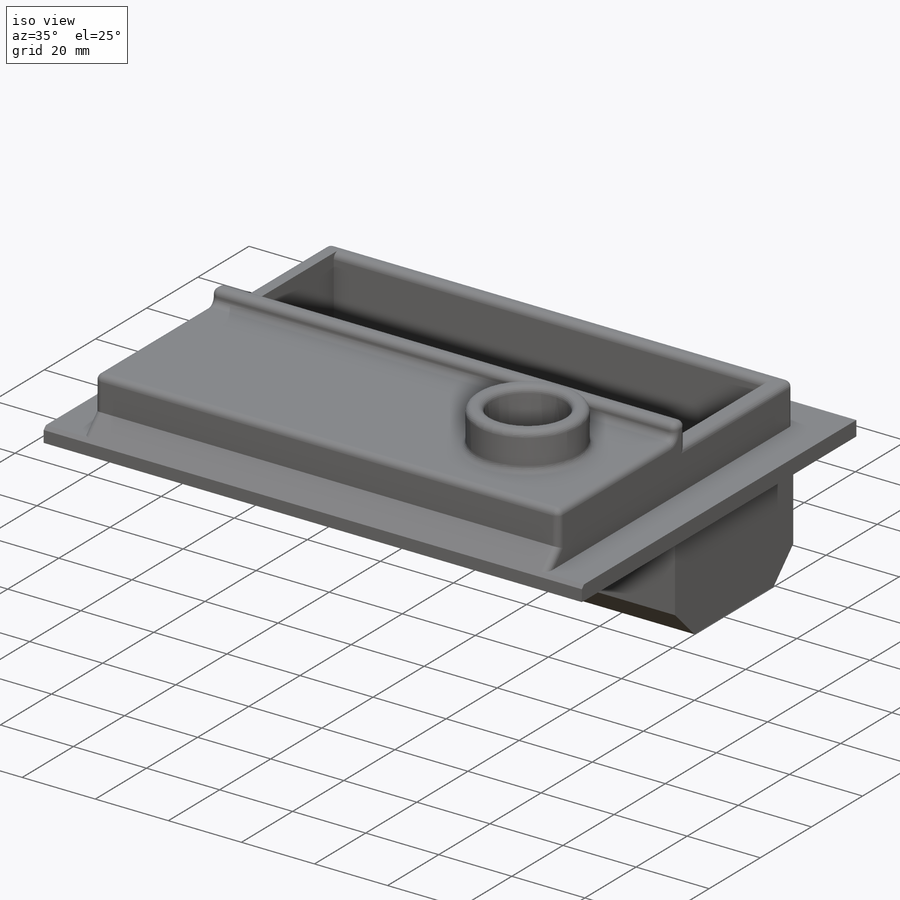
[diagram: iso view]
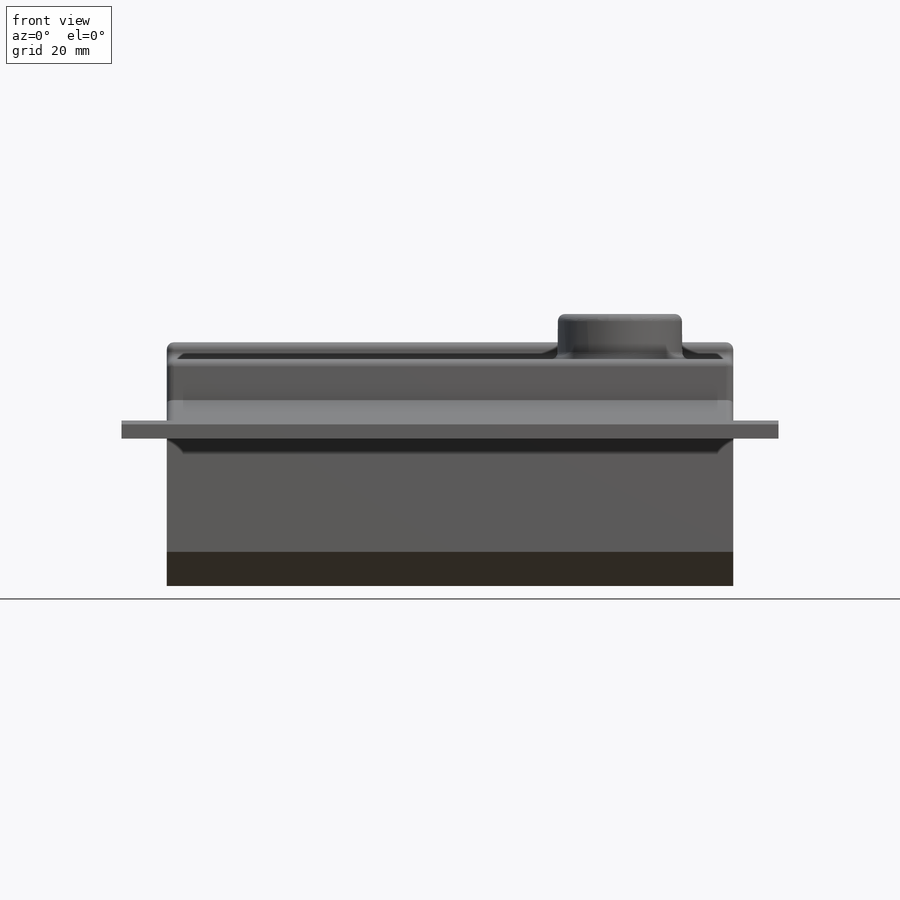
[diagram: front view]
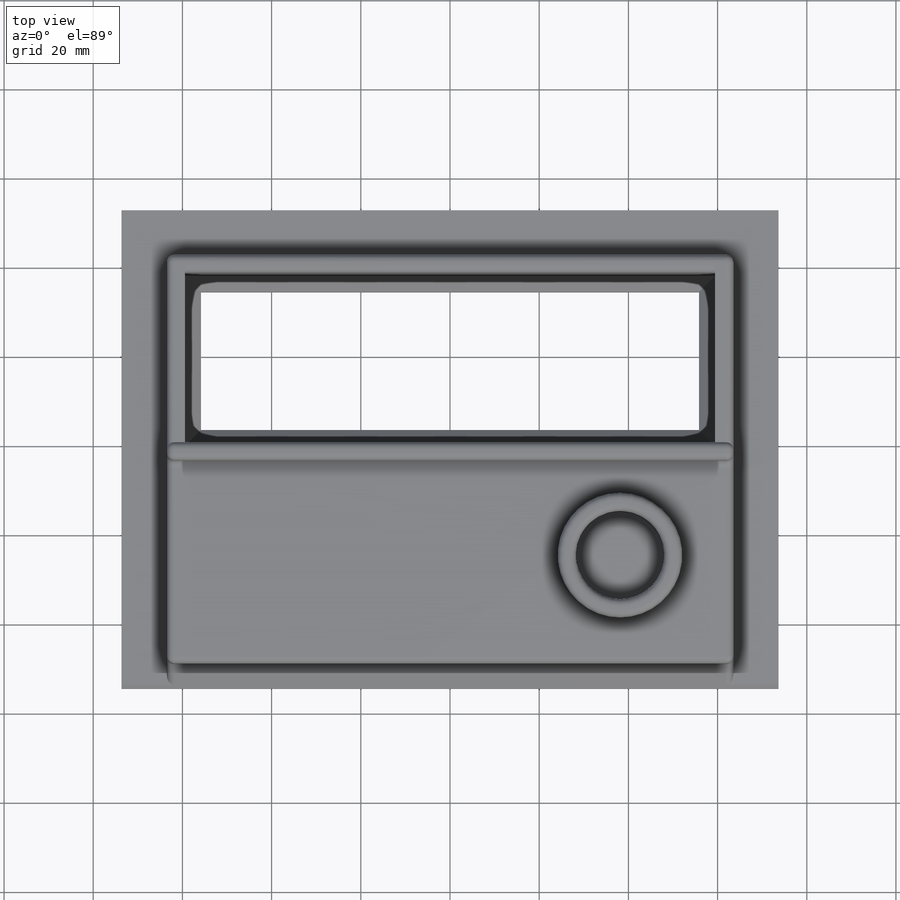
[diagram: top view]
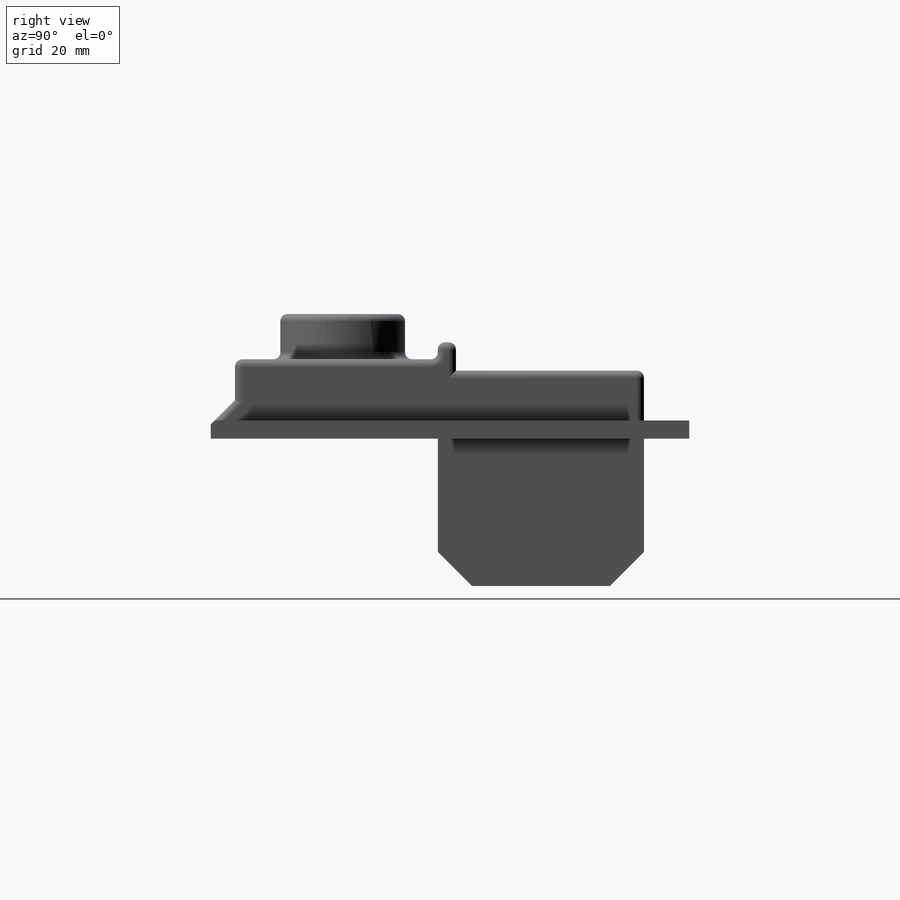
[diagram: right view]
SOLIDWORKS PART (.sldprt)
format: sldprt  version: not decoded by parser v0  size: 496,640 bytes
history: native  units: mm
features: sketch x6, extrude x5, fillet x3, mirror x2, material x1, cut_extrude x1 (+16 scaffold rows collapsed)
feature tree (34):
  scaffold x16  (default folders/planes/origin — collapsed)
  material  "NEOPRENE"
  sketch  "Sketch1"  dims[c1.D24=1.6002mm c1.D25=1.6002mm c1.D1=55.88mm c1.D2=17.78mm c1.D3=4.064mm c1.D4=4.064mm c1.D5=25.4mm c1.D6=35.56mm c2.D6=135.0deg c2.D7=~7.373468mm c3.D7=~7.840256deg c4.D7=4.064mm c4.D8=5.08mm c4.D9=6.35mm c4.D10=5.08mm c4.D11=4.064mm c4.D12=49.53mm c4.D13=4.064mm c4.D14=3.175mm c4.D15=7.62mm c5.D15=135.0deg c6.D15=3.175mm c7.D15=135.0deg c7.D10=4.064mm c7.D16=107.315mm c7.D17=10.16mm c7.D18=4.064mm c7.D19=~3.048305mm c8.D19=45.0deg c8.D20=4.064mm c8.D21=5.08mm c8.D4=38.1mm c8.D10=4.064mm c8.D12=4.064mm c9.D19=4.064mm c9.D20=25.4mm c9.D22=~2.694077mm c10.D22=135.0deg c10.D23=49.53mm c10.D9=21.59mm c10.D26=15.24mm]
  extrude  "Boss-Extrude1"  Depth=127mm
  sketch  "Sketch2"
  extrude  "Boss-Extrude2"  Depth=4.064mm
  sketch  "Sketch3"
  extrude  "Boss-Extrude3"  Depth=10.16mm
  mirror  "Mirror1"
  sketch  "Sketch4"  dims[c1.D1=4.064mm c1.D2=4.064mm c2.D2=135.0deg c2.D1=~3.592102mm]
  extrude  "Boss-Extrude4"  [1 undecoded]
  sketch  "Sketch5"  dims[D1=0.0mm]
  cut_extrude  "Cut-Extrude1"  Depth=10.16mm
  mirror  "Mirror2"
  fillet  "Fillet1"  Radius=1.6002mm
  fillet  "Fillet2"  Radius=1.6002mm
  sketch  "Sketch6"  dims[c1.D1=~19.37462mm c1.D2=27.94mm c2.D1=4.064mm c2.D3=25.4mm c2.D4=38.1mm]
  extrude  "Boss-Extrude5"  Depth=10.16mm
  fillet  "Fillet3"  Radius=1.6002mm
decode coverage: 12 of 17 modeling features carry decoded parameters
note: ~ marks probable driven/reference dimensions
note: 1 parameter value undecoded
note: suppression state not decoded; provenance and decode notes live in map.json
